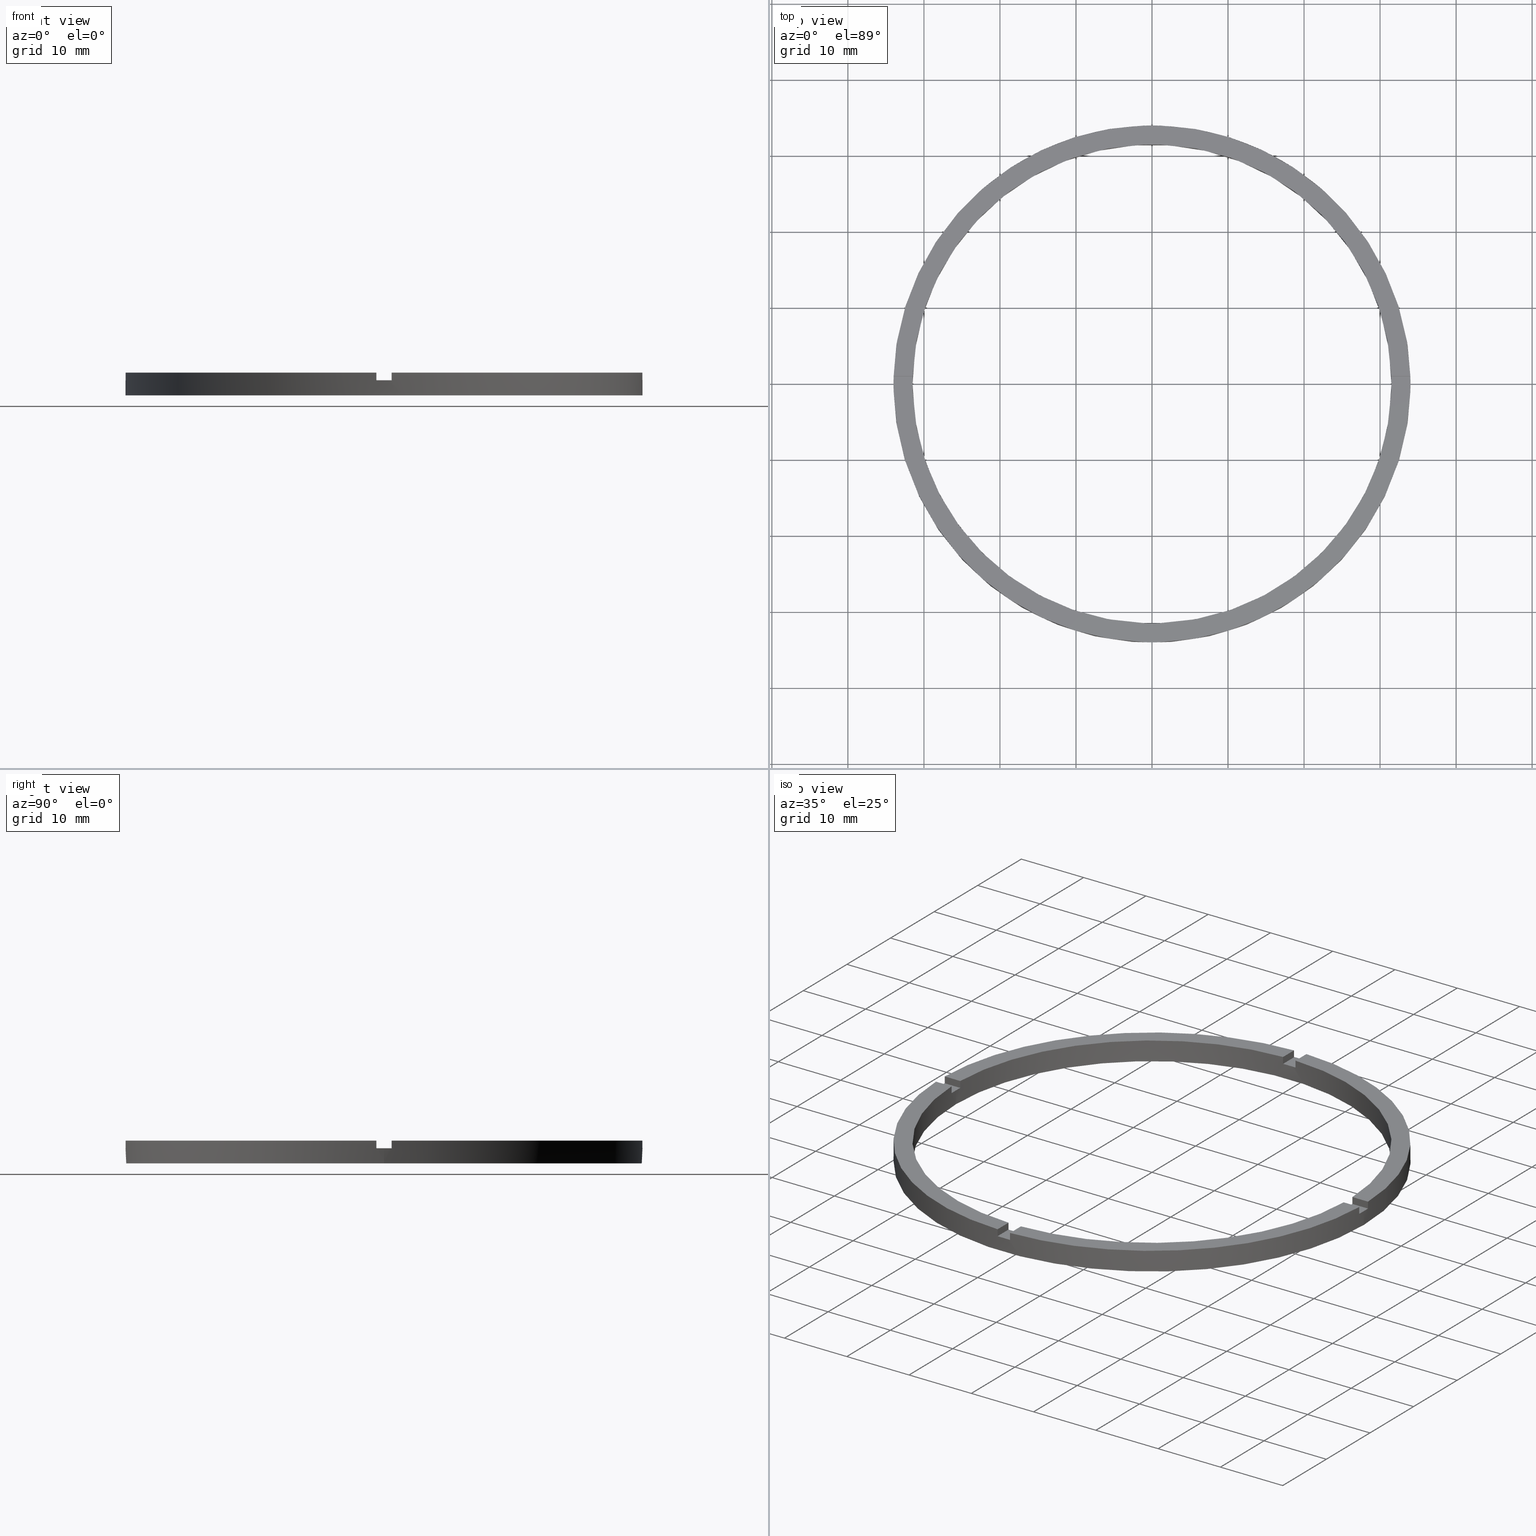
[diagram: canonical four-view strip — front | top / right | iso, engineering-drawing reading convention]
A machine part, canonical four-view strip (front | top / right | iso — engineering-drawing reading convention). The complete STEP part file that produces these views, byte-faithful:
ISO-10303-21;
HEADER;
FILE_DESCRIPTION (( 'STEP AP203' ),
    '1' );
FILE_NAME ('514141.step',
    '2024-12-26T02:41:29',
    ( 'MSI' ),
    ( '' ),
    'SwSTEP 2.0',
    'SolidWorks 2020',
    '' );
FILE_SCHEMA (( 'CONFIG_CONTROL_DESIGN' ));
ENDSEC;

DATA;
#1 = EDGE_CURVE ( 'NONE', #319, #489, #498, .T. ) ;
#2 = PLANE ( 'NONE',  #467 ) ;
#3 = EDGE_CURVE ( 'NONE', #123, #376, #768, .T. ) ;
#4 = DIRECTION ( 'NONE',  ( 0.000000000000000000, 0.000000000000000000, 1.000000000000000000 ) ) ;
#5 = EDGE_CURVE ( 'NONE', #489, #9, #764, .T. ) ;
#6 = CARTESIAN_POINT ( 'NONE',  ( -1.000000000000024869, 24.00000000000000000, 2.000000000000000000 ) ) ;
#7 = AXIS2_PLACEMENT_3D ( 'NONE', #135, #190, #295 ) ;
#8 = CARTESIAN_POINT ( 'NONE',  ( 23.99999999999999289, 0.9999999999998412381, 3.000000000000000000 ) ) ;
#9 = VERTEX_POINT ( 'NONE', #409 ) ;
#10 = ADVANCED_FACE ( 'NONE', ( #250 ), #66, .F. ) ;
#11 = DIRECTION ( 'NONE',  ( 1.951563910473907735E-16, -1.000000000000000000, 0.000000000000000000 ) ) ;
#12 = DIRECTION ( 'NONE',  ( 0.000000000000000000, 0.000000000000000000, 1.000000000000000000 ) ) ;
#13 = DIRECTION ( 'NONE',  ( 1.000000000000000000, 0.000000000000000000, 0.000000000000000000 ) ) ;
#14 = ORIENTED_EDGE ( 'NONE', *, *, #447, .F. ) ;
#15 = EDGE_LOOP ( 'NONE', ( #677, #175, #229, #56, #176, #446, #306, #116, #249, #704, #679, #44 ) ) ;
#16 = CARTESIAN_POINT ( 'NONE',  ( 0.000000000000000000, 0.000000000000000000, 3.000000000000000000 ) ) ;
#17 = AXIS2_PLACEMENT_3D ( 'NONE', #294, #299, #387 ) ;
#18 = ADVANCED_FACE ( 'NONE', ( #241 ), #562, .T. ) ;
#19 = CARTESIAN_POINT ( 'NONE',  ( -31.50000000000000000, 0.000000000000000000, 0.000000000000000000 ) ) ;
#20 = VERTEX_POINT ( 'NONE', #313 ) ;
#21 = DIRECTION ( 'NONE',  ( -0.000000000000000000, -0.000000000000000000, -1.000000000000000000 ) ) ;
#22 = CARTESIAN_POINT ( 'NONE',  ( 31.48412298286232414, -1.000000000000158318, 3.000000000000000000 ) ) ;
#23 = VERTEX_POINT ( 'NONE', #517 ) ;
#24 = AXIS2_PLACEMENT_3D ( 'NONE', #300, #392, #235 ) ;
#25 = DIRECTION ( 'NONE',  ( 1.000000000000000000, 0.000000000000000000, 0.000000000000000000 ) ) ;
#26 = CARTESIAN_POINT ( 'NONE',  ( 0.000000000000000000, 0.000000000000000000, 2.000000000000000000 ) ) ;
#27 = DIRECTION ( 'NONE',  ( -0.000000000000000000, -0.000000000000000000, -1.000000000000000000 ) ) ;
#28 = APPROVAL ( #29, 'δָ��' ) ;
#29 = APPROVAL_STATUS ( 'not_yet_approved' ) ;
#30 = ORIENTED_EDGE ( 'NONE', *, *, #571, .T. ) ;
#31 = EDGE_CURVE ( 'NONE', #319, #673, #491, .T. ) ;
#32 = EDGE_CURVE ( 'NONE', #594, #302, #744, .T. ) ;
#33 = ORIENTED_EDGE ( 'NONE', *, *, #739, .F. ) ;
#34 = EDGE_LOOP ( 'NONE', ( #335, #30 ) ) ;
#35 = ORIENTED_EDGE ( 'NONE', *, *, #758, .F. ) ;
#36 = APPLICATION_CONTEXT ( 'configuration controlled 3d designs of mechanical parts and assemblies' ) ;
#37 = CARTESIAN_POINT ( 'NONE',  ( 0.000000000000000000, 0.000000000000000000, 3.000000000000000000 ) ) ;
#38 = ORIENTED_EDGE ( 'NONE', *, *, #194, .T. ) ;
#39 = PLANE ( 'NONE',  #291 ) ;
#40 = ORIENTED_EDGE ( 'NONE', *, *, #3, .F. ) ;
#41 = EDGE_CURVE ( 'NONE', #133, #50, #761, .T. ) ;
#42 = DATE_TIME_ROLE ( 'creation_date' ) ;
#43 = ORIENTED_EDGE ( 'NONE', *, *, #378, .F. ) ;
#44 = ORIENTED_EDGE ( 'NONE', *, *, #417, .T. ) ;
#45 = DIRECTION ( 'NONE',  ( 0.000000000000000000, 0.000000000000000000, 1.000000000000000000 ) ) ;
#46 = ORIENTED_EDGE ( 'NONE', *, *, #41, .F. ) ;
#47 = ORIENTED_EDGE ( 'NONE', *, *, #159, .F. ) ;
#48 = PLANE ( 'NONE',  #7 ) ;
#49 = ORIENTED_EDGE ( 'NONE', *, *, #112, .T. ) ;
#50 = VERTEX_POINT ( 'NONE', #22 ) ;
#51 = CYLINDRICAL_SURFACE ( 'NONE', #113, 31.50000000000000000 ) ;
#52 = CARTESIAN_POINT ( 'NONE',  ( 34.00000000000000000, 4.163799117101000559E-15, 2.000000000000000000 ) ) ;
#53 = EDGE_LOOP ( 'NONE', ( #573, #411, #242, #448 ) ) ;
#54 = CARTESIAN_POINT ( 'NONE',  ( 0.9999999999998393507, -33.98529093593285921, 2.000000000000000000 ) ) ;
#55 = AXIS2_PLACEMENT_3D ( 'NONE', #16, #207, #747 ) ;
#56 = ORIENTED_EDGE ( 'NONE', *, *, #453, .F. ) ;
#57 = PERSON_AND_ORGANIZATION ( #257, #76 ) ;
#58 = VERTEX_POINT ( 'NONE', #655 ) ;
#59 = EDGE_LOOP ( 'NONE', ( #502, #428, #487, #682 ) ) ;
#60 = PRODUCT_DEFINITION_FORMATION_WITH_SPECIFIED_SOURCE ( '�κ�', '', #546, .NOT_KNOWN. ) ;
#61 = ORIENTED_EDGE ( 'NONE', *, *, #232, .F. ) ;
#62 = ORIENTED_EDGE ( 'NONE', *, *, #633, .T. ) ;
#63 = PERSON_AND_ORGANIZATION ( #257, #76 ) ;
#64 = CARTESIAN_POINT ( 'NONE',  ( -1.000000000000160982, -31.48412298286232414, 3.000000000000000000 ) ) ;
#65 = AXIS2_PLACEMENT_3D ( 'NONE', #281, #114, #347 ) ;
#66 = PLANE ( 'NONE',  #179 ) ;
#67 = COORDINATED_UNIVERSAL_TIME_OFFSET ( 8, 0, .AHEAD. ) ;
#68 = VERTEX_POINT ( 'NONE', #334 ) ;
#69 = CALENDAR_DATE ( 2024, 26, 12 ) ;
#70 = EDGE_CURVE ( 'NONE', #329, #123, #733, .T. ) ;
#71 = APPROVAL_DATE_TIME ( #351, #783 ) ;
#72 = CARTESIAN_POINT ( 'NONE',  ( -31.48412298286233124, -1.000000000000025757, 3.000000000000000000 ) ) ;
#73 = VERTEX_POINT ( 'NONE', #255 ) ;
#74 = DATE_AND_TIME ( #604, #96 ) ;
#75 = DIRECTION ( 'NONE',  ( 0.000000000000000000, 0.000000000000000000, 1.000000000000000000 ) ) ;
#76 = ORGANIZATION ( 'δָ��', 'δָ��', '' ) ;
#77 = ORIENTED_EDGE ( 'NONE', *, *, #582, .T. ) ;
#78 = PERSON_AND_ORGANIZATION ( #257, #76 ) ;
#79 = CARTESIAN_POINT ( 'NONE',  ( 0.000000000000000000, 0.000000000000000000, 2.000000000000000000 ) ) ;
#80 = PERSON_AND_ORGANIZATION ( #257, #76 ) ;
#81 = ADVANCED_FACE ( 'NONE', ( #735 ), #692, .F. ) ;
#82 =( LENGTH_UNIT ( ) NAMED_UNIT ( * ) SI_UNIT ( .MILLI., .METRE. ) );
#83 = CIRCLE ( 'NONE', #65, 31.50000000000000000 ) ;
#84 = COORDINATED_UNIVERSAL_TIME_OFFSET ( 8, 0, .AHEAD. ) ;
#85 = AXIS2_PLACEMENT_3D ( 'NONE', #272, #75, #222 ) ;
#86 = LINE ( 'NONE', #286, #634 ) ;
#87 = LOCAL_TIME ( 10, 41, 29.00000000000000000, #340 ) ;
#88 = VECTOR ( 'NONE', #45, 1000.000000000000000 ) ;
#89 = VECTOR ( 'NONE', #730, 1000.000000000000000 ) ;
#90 = CARTESIAN_POINT ( 'NONE',  ( 0.000000000000000000, 0.000000000000000000, 0.000000000000000000 ) ) ;
#91 = LINE ( 'NONE', #525, #621 ) ;
#92 = APPROVAL_DATE_TIME ( #614, #28 ) ;
#93 = CALENDAR_DATE ( 2024, 26, 12 ) ;
#94 = DIRECTION ( 'NONE',  ( 0.000000000000000000, 0.000000000000000000, 1.000000000000000000 ) ) ;
#95 = FACE_OUTER_BOUND ( 'NONE', #542, .T. ) ;
#96 = LOCAL_TIME ( 10, 41, 29.00000000000000000, #84 ) ;
#97 = VECTOR ( 'NONE', #143, 1000.000000000000000 ) ;
#98 = VECTOR ( 'NONE', #645, 1000.000000000000000 ) ;
#99 = VECTOR ( 'NONE', #686, 1000.000000000000000 ) ;
#100 = EDGE_LOOP ( 'NONE', ( #442, #574, #399, #160 ) ) ;
#101 = LINE ( 'NONE', #349, #396 ) ;
#102 = CIRCLE ( 'NONE', #85, 34.00000000000000000 ) ;
#103 = DIRECTION ( 'NONE',  ( -1.000000000000000000, 0.000000000000000000, 0.000000000000000000 ) ) ;
#104 = LINE ( 'NONE', #356, #381 ) ;
#105 = EDGE_LOOP ( 'NONE', ( #565, #224, #164, #765 ) ) ;
#106 = FACE_OUTER_BOUND ( 'NONE', #298, .T. ) ;
#107 = ORIENTED_EDGE ( 'NONE', *, *, #31, .F. ) ;
#108 = CIRCLE ( 'NONE', #458, 31.50000000000000000 ) ;
#109 = FACE_OUTER_BOUND ( 'NONE', #662, .T. ) ;
#110 = VERTEX_POINT ( 'NONE', #19 ) ;
#111 = DIRECTION ( 'NONE',  ( 0.000000000000000000, 0.000000000000000000, 1.000000000000000000 ) ) ;
#112 = EDGE_CURVE ( 'NONE', #395, #180, #218, .T. ) ;
#113 = AXIS2_PLACEMENT_3D ( 'NONE', #412, #706, #465 ) ;
#114 = DIRECTION ( 'NONE',  ( 0.000000000000000000, 0.000000000000000000, 1.000000000000000000 ) ) ;
#115 = CIRCLE ( 'NONE', #722, 31.50000000000000000 ) ;
#116 = ORIENTED_EDGE ( 'NONE', *, *, #70, .T. ) ;
#117 = VECTOR ( 'NONE', #644, 1000.000000000000000 ) ;
#118 = CIRCLE ( 'NONE', #499, 34.00000000000000000 ) ;
#119 = VERTEX_POINT ( 'NONE', #54 ) ;
#120 = APPROVAL_STATUS ( 'not_yet_approved' ) ;
#121 = EDGE_CURVE ( 'NONE', #413, #174, #245, .T. ) ;
#122 = CYLINDRICAL_SURFACE ( 'NONE', #431, 34.00000000000000000 ) ;
#123 = VERTEX_POINT ( 'NONE', #196 ) ;
#124 = FACE_OUTER_BOUND ( 'NONE', #642, .T. ) ;
#125 = ORIENTED_EDGE ( 'NONE', *, *, #610, .T. ) ;
#126 = CARTESIAN_POINT ( 'NONE',  ( 23.99999999999999289, -1.000000000000158762, 2.000000000000000000 ) ) ;
#127 = FACE_OUTER_BOUND ( 'NONE', #707, .T. ) ;
#128 = VECTOR ( 'NONE', #566, 1000.000000000000000 ) ;
#129 = CARTESIAN_POINT ( 'NONE',  ( 0.000000000000000000, 0.000000000000000000, 2.000000000000000000 ) ) ;
#130 = PERSON_AND_ORGANIZATION_ROLE ( 'creator' ) ;
#131 = ORIENTED_EDGE ( 'NONE', *, *, #705, .T. ) ;
#132 = AXIS2_PLACEMENT_3D ( 'NONE', #445, #111, #592 ) ;
#133 = VERTEX_POINT ( 'NONE', #147 ) ;
#134 = EDGE_CURVE ( 'NONE', #329, #673, #762, .T. ) ;
#135 = CARTESIAN_POINT ( 'NONE',  ( 0.000000000000000000, 0.000000000000000000, 2.000000000000000000 ) ) ;
#136 = CARTESIAN_POINT ( 'NONE',  ( -1.000000000000024869, 31.48412298286233124, 3.000000000000000000 ) ) ;
#137 = CARTESIAN_POINT ( 'NONE',  ( 0.000000000000000000, 0.000000000000000000, 3.000000000000000000 ) ) ;
#138 = AXIS2_PLACEMENT_3D ( 'NONE', #638, #631, #742 ) ;
#139 = ORIENTED_EDGE ( 'NONE', *, *, #285, .F. ) ;
#140 = DIRECTION ( 'NONE',  ( -1.000000000000000000, -1.301042606982605074E-16, 0.000000000000000000 ) ) ;
#141 = DIRECTION ( 'NONE',  ( -1.000000000000000000, -6.505213034913025371E-17, -0.000000000000000000 ) ) ;
#142 = ORIENTED_EDGE ( 'NONE', *, *, #184, .T. ) ;
#143 = DIRECTION ( 'NONE',  ( 0.000000000000000000, 0.000000000000000000, 1.000000000000000000 ) ) ;
#144 = DIRECTION ( 'NONE',  ( -1.000000000000000000, 0.000000000000000000, 0.000000000000000000 ) ) ;
#145 = CC_DESIGN_PERSON_AND_ORGANIZATION_ASSIGNMENT ( #78, #729, ( #725 ) ) ;
#146 = ORIENTED_EDGE ( 'NONE', *, *, #523, .T. ) ;
#147 = CARTESIAN_POINT ( 'NONE',  ( 31.48412298286232414, -1.000000000000158318, 2.000000000000000000 ) ) ;
#148 = DIRECTION ( 'NONE',  ( 6.505213034913025371E-17, -1.000000000000000000, 0.000000000000000000 ) ) ;
#149 = ORIENTED_EDGE ( 'NONE', *, *, #524, .F. ) ;
#150 = ORIENTED_EDGE ( 'NONE', *, *, #258, .F. ) ;
#151 = ORIENTED_EDGE ( 'NONE', *, *, #424, .T. ) ;
#152 = DIRECTION ( 'NONE',  ( -0.000000000000000000, -0.000000000000000000, -1.000000000000000000 ) ) ;
#153 = CARTESIAN_POINT ( 'NONE',  ( 0.9999999999998391287, -31.48412298286233479, 3.000000000000000000 ) ) ;
#154 = EDGE_CURVE ( 'NONE', #594, #422, #230, .T. ) ;
#155 = DIRECTION ( 'NONE',  ( -1.000000000000000000, -1.951563910473907735E-16, 0.000000000000000000 ) ) ;
#156 = LINE ( 'NONE', #615, #166 ) ;
#157 = LINE ( 'NONE', #606, #696 ) ;
#158 = ORIENTED_EDGE ( 'NONE', *, *, #544, .F. ) ;
#159 = EDGE_CURVE ( 'NONE', #23, #415, #748, .T. ) ;
#160 = ORIENTED_EDGE ( 'NONE', *, *, #244, .F. ) ;
#161 = EDGE_CURVE ( 'NONE', #329, #598, #231, .T. ) ;
#162 = CARTESIAN_POINT ( 'NONE',  ( -1.000000000000160982, -31.48412298286232414, 3.000000000000000000 ) ) ;
#163 = DIRECTION ( 'NONE',  ( 1.000000000000000000, 0.000000000000000000, -0.000000000000000000 ) ) ;
#164 = ORIENTED_EDGE ( 'NONE', *, *, #121, .F. ) ;
#165 = CARTESIAN_POINT ( 'NONE',  ( -33.98529093593285921, 0.9999999999999735767, 3.000000000000000000 ) ) ;
#166 = VECTOR ( 'NONE', #440, 1000.000000000000000 ) ;
#167 = ORIENTED_EDGE ( 'NONE', *, *, #1, .T. ) ;
#168 = VECTOR ( 'NONE', #4, 1000.000000000000000 ) ;
#169 = CARTESIAN_POINT ( 'NONE',  ( 0.000000000000000000, 0.000000000000000000, 2.000000000000000000 ) ) ;
#170 = CARTESIAN_POINT ( 'NONE',  ( 0.000000000000000000, 0.000000000000000000, 0.000000000000000000 ) ) ;
#171 = FACE_OUTER_BOUND ( 'NONE', #178, .T. ) ;
#172 = AXIS2_PLACEMENT_3D ( 'NONE', #185, #777, #25 ) ;
#173 = ORIENTED_EDGE ( 'NONE', *, *, #134, .T. ) ;
#174 = VERTEX_POINT ( 'NONE', #307 ) ;
#175 = ORIENTED_EDGE ( 'NONE', *, *, #378, .T. ) ;
#176 = ORIENTED_EDGE ( 'NONE', *, *, #1, .F. ) ;
#177 = ORIENTED_EDGE ( 'NONE', *, *, #315, .F. ) ;
#178 = EDGE_LOOP ( 'NONE', ( #247, #681, #292, #150 ) ) ;
#179 = AXIS2_PLACEMENT_3D ( 'NONE', #556, #148, #639 ) ;
#180 = VERTEX_POINT ( 'NONE', #405 ) ;
#181 = PLANE ( 'NONE',  #536 ) ;
#182 = CARTESIAN_POINT ( 'NONE',  ( 0.9999999999999751310, 31.48412298286233124, 3.000000000000000000 ) ) ;
#183 = DIRECTION ( 'NONE',  ( 1.000000000000000000, 6.505213034913025371E-17, 0.000000000000000000 ) ) ;
#184 = EDGE_CURVE ( 'NONE', #50, #384, #770, .T. ) ;
#185 = CARTESIAN_POINT ( 'NONE',  ( 0.000000000000000000, 0.000000000000000000, 3.000000000000000000 ) ) ;
#186 = CARTESIAN_POINT ( 'NONE',  ( -33.98529093593285211, -1.000000000000026423, 3.000000000000000000 ) ) ;
#187 = CC_DESIGN_PERSON_AND_ORGANIZATION_ASSIGNMENT ( #57, #240, ( #546 ) ) ;
#188 = CARTESIAN_POINT ( 'NONE',  ( 0.000000000000000000, 0.000000000000000000, 2.000000000000000000 ) ) ;
#189 = EDGE_CURVE ( 'NONE', #23, #450, #522, .T. ) ;
#190 = DIRECTION ( 'NONE',  ( 0.000000000000000000, 0.000000000000000000, 1.000000000000000000 ) ) ;
#191 = DIRECTION ( 'NONE',  ( -0.000000000000000000, -0.000000000000000000, -1.000000000000000000 ) ) ;
#192 = DIRECTION ( 'NONE',  ( 1.000000000000000000, 0.000000000000000000, -0.000000000000000000 ) ) ;
#193 = EDGE_CURVE ( 'NONE', #479, #319, #253, .T. ) ;
#194 = EDGE_CURVE ( 'NONE', #449, #123, #521, .T. ) ;
#195 = PLANE ( 'NONE',  #454 ) ;
#196 = CARTESIAN_POINT ( 'NONE',  ( -1.000000000000024869, 33.98529093593285211, 2.000000000000000000 ) ) ;
#197 = AXIS2_PLACEMENT_3D ( 'NONE', #552, #280, #663 ) ;
#198 = DIRECTION ( 'NONE',  ( 1.301042606982605074E-16, -1.000000000000000000, 0.000000000000000000 ) ) ;
#199 = DIRECTION ( 'NONE',  ( 1.000000000000000000, -0.000000000000000000, 0.000000000000000000 ) ) ;
#200 = CARTESIAN_POINT ( 'NONE',  ( -1.000000000000024869, 24.00000000000000000, 3.000000000000000000 ) ) ;
#201 = EDGE_CURVE ( 'NONE', #598, #513, #772, .T. ) ;
#202 = DIRECTION ( 'NONE',  ( 0.000000000000000000, 0.000000000000000000, 1.000000000000000000 ) ) ;
#203 = PLANE ( 'NONE',  #529 ) ;
#204 = DIRECTION ( 'NONE',  ( -0.000000000000000000, 0.000000000000000000, 1.000000000000000000 ) ) ;
#205 = CARTESIAN_POINT ( 'NONE',  ( 0.000000000000000000, 0.000000000000000000, 2.000000000000000000 ) ) ;
#206 = AXIS2_PLACEMENT_3D ( 'NONE', #320, #414, #468 ) ;
#207 = DIRECTION ( 'NONE',  ( 0.000000000000000000, 0.000000000000000000, 1.000000000000000000 ) ) ;
#208 = CARTESIAN_POINT ( 'NONE',  ( -1.000000000000024869, 33.98529093593285211, 3.000000000000000000 ) ) ;
#209 = CC_DESIGN_APPROVAL ( #553, ( #725 ) ) ;
#210 = DIRECTION ( 'NONE',  ( 1.000000000000000000, 0.000000000000000000, 0.000000000000000000 ) ) ;
#211 = CARTESIAN_POINT ( 'NONE',  ( 0.000000000000000000, 0.000000000000000000, 2.000000000000000000 ) ) ;
#212 = PLANE ( 'NONE',  #271 ) ;
#213 = EDGE_CURVE ( 'NONE', #9, #595, #518, .T. ) ;
#214 = VERTEX_POINT ( 'NONE', #757 ) ;
#215 =( GEOMETRIC_REPRESENTATION_CONTEXT ( 3 ) GLOBAL_UNCERTAINTY_ASSIGNED_CONTEXT ( ( #256 ) ) GLOBAL_UNIT_ASSIGNED_CONTEXT ( ( #82, #436, #532 ) ) REPRESENTATION_CONTEXT ( 'NONE', 'WORKASPACE' ) );
#216 = DIRECTION ( 'NONE',  ( 1.000000000000000000, 0.000000000000000000, 0.000000000000000000 ) ) ;
#217 = ORIENTED_EDGE ( 'NONE', *, *, #293, .F. ) ;
#218 = LINE ( 'NONE', #697, #493 ) ;
#219 = DIRECTION ( 'NONE',  ( 0.000000000000000000, 0.000000000000000000, 1.000000000000000000 ) ) ;
#220 = ORIENTED_EDGE ( 'NONE', *, *, #453, .T. ) ;
#221 = CC_DESIGN_DATE_AND_TIME_ASSIGNMENT ( #357, #42, ( #661 ) ) ;
#222 = DIRECTION ( 'NONE',  ( 1.000000000000000000, 0.000000000000000000, 0.000000000000000000 ) ) ;
#223 = APPLICATION_CONTEXT ( 'configuration controlled 3d designs of mechanical parts and assemblies' ) ;
#224 = ORIENTED_EDGE ( 'NONE', *, *, #758, .T. ) ;
#225 = ORIENTED_EDGE ( 'NONE', *, *, #582, .F. ) ;
#226 = ORIENTED_EDGE ( 'NONE', *, *, #750, .F. ) ;
#227 = VECTOR ( 'NONE', #27, 1000.000000000000000 ) ;
#228 = PERSON_AND_ORGANIZATION_ROLE ( 'creator' ) ;
#229 = ORIENTED_EDGE ( 'NONE', *, *, #315, .T. ) ;
#230 = LINE ( 'NONE', #8, #497 ) ;
#231 = LINE ( 'NONE', #200, #511 ) ;
#232 = EDGE_CURVE ( 'NONE', #598, #376, #769, .T. ) ;
#233 = ORIENTED_EDGE ( 'NONE', *, *, #41, .T. ) ;
#234 = ORIENTED_EDGE ( 'NONE', *, *, #554, .F. ) ;
#235 = DIRECTION ( 'NONE',  ( 1.000000000000000000, 0.000000000000000000, 0.000000000000000000 ) ) ;
#236 = DIRECTION ( 'NONE',  ( 0.000000000000000000, 0.000000000000000000, 1.000000000000000000 ) ) ;
#237 = ORIENTED_EDGE ( 'NONE', *, *, #70, .F. ) ;
#238 = ORIENTED_EDGE ( 'NONE', *, *, #544, .T. ) ;
#239 = ADVANCED_FACE ( 'NONE', ( #124 ), #401, .T. ) ;
#240 = PERSON_AND_ORGANIZATION_ROLE ( 'design_owner' ) ;
#241 = FACE_OUTER_BOUND ( 'NONE', #559, .T. ) ;
#242 = ORIENTED_EDGE ( 'NONE', *, *, #112, .F. ) ;
#243 = CARTESIAN_POINT ( 'NONE',  ( -24.00000000000018829, -1.000000000000024425, 2.000000000000000000 ) ) ;
#244 = EDGE_CURVE ( 'NONE', #339, #9, #353, .T. ) ;
#245 = LINE ( 'NONE', #618, #746 ) ;
#246 = CARTESIAN_POINT ( 'NONE',  ( -24.00000000000018829, 0.9999999999999754641, 2.000000000000000000 ) ) ;
#247 = ORIENTED_EDGE ( 'NONE', *, *, #189, .F. ) ;
#248 = DIRECTION ( 'NONE',  ( 0.000000000000000000, 0.000000000000000000, 1.000000000000000000 ) ) ;
#249 = ORIENTED_EDGE ( 'NONE', *, *, #194, .F. ) ;
#250 = FACE_OUTER_BOUND ( 'NONE', #289, .T. ) ;
#251 = VECTOR ( 'NONE', #191, 1000.000000000000000 ) ;
#252 = VECTOR ( 'NONE', #463, 1000.000000000000000 ) ;
#253 = LINE ( 'NONE', #708, #254 ) ;
#254 = VECTOR ( 'NONE', #155, 1000.000000000000000 ) ;
#255 = CARTESIAN_POINT ( 'NONE',  ( 31.50000000000000000, 3.857637417314162689E-15, 0.000000000000000000 ) ) ;
#256 = UNCERTAINTY_MEASURE_WITH_UNIT (LENGTH_MEASURE( 1.000000000000000082E-05 ), #82, 'distance_accuracy_value', 'NONE');
#257 = PERSON ( 'δָ��', 'δָ��', 'δָ��', ('δָ��'), ('δָ��'), ('δָ��') ) ;
#258 = EDGE_CURVE ( 'NONE', #450, #494, #632, .T. ) ;
#259 = AXIS2_PLACEMENT_3D ( 'NONE', #691, #202, #288 ) ;
#260 = PLANE ( 'NONE',  #509 ) ;
#261 = CARTESIAN_POINT ( 'NONE',  ( 0.000000000000000000, 0.000000000000000000, 3.000000000000000000 ) ) ;
#262 = CARTESIAN_POINT ( 'NONE',  ( 0.000000000000000000, 0.000000000000000000, 3.000000000000000000 ) ) ;
#263 = DIRECTION ( 'NONE',  ( -0.000000000000000000, -1.000000000000000000, -0.000000000000000000 ) ) ;
#264 = ADVANCED_FACE ( 'NONE', ( #374 ), #2, .T. ) ;
#265 = AXIS2_PLACEMENT_3D ( 'NONE', #547, #630, #702 ) ;
#266 = CARTESIAN_POINT ( 'NONE',  ( 0.000000000000000000, 0.000000000000000000, 3.000000000000000000 ) ) ;
#267 = DIRECTION ( 'NONE',  ( 1.000000000000000000, 0.000000000000000000, 0.000000000000000000 ) ) ;
#268 = DIRECTION ( 'NONE',  ( -0.000000000000000000, -1.000000000000000000, -0.000000000000000000 ) ) ;
#269 = PLANE ( 'NONE',  #55 ) ;
#270 = CARTESIAN_POINT ( 'NONE',  ( 0.9999999999998380185, -24.00000000000018119, 2.000000000000000000 ) ) ;
#271 = AXIS2_PLACEMENT_3D ( 'NONE', #26, #480, #726 ) ;
#272 = CARTESIAN_POINT ( 'NONE',  ( 0.000000000000000000, 0.000000000000000000, 3.000000000000000000 ) ) ;
#273 = DIRECTION ( 'NONE',  ( 0.000000000000000000, 0.000000000000000000, 1.000000000000000000 ) ) ;
#274 = CARTESIAN_POINT ( 'NONE',  ( -31.48412298286233124, 0.9999999999999742428, 3.000000000000000000 ) ) ;
#275 = PLANE ( 'NONE',  #577 ) ;
#276 = ADVANCED_FACE ( 'NONE', ( #363 ), #212, .T. ) ;
#277 = CARTESIAN_POINT ( 'NONE',  ( 0.000000000000000000, 0.000000000000000000, 0.000000000000000000 ) ) ;
#278 = CARTESIAN_POINT ( 'NONE',  ( 31.48412298286232414, -1.000000000000158318, 3.000000000000000000 ) ) ;
#279 = ORIENTED_EDGE ( 'NONE', *, *, #605, .T. ) ;
#280 = DIRECTION ( 'NONE',  ( 0.000000000000000000, 0.000000000000000000, 1.000000000000000000 ) ) ;
#281 = CARTESIAN_POINT ( 'NONE',  ( 0.000000000000000000, 0.000000000000000000, 3.000000000000000000 ) ) ;
#282 = ORIENTED_EDGE ( 'NONE', *, *, #665, .T. ) ;
#283 = CARTESIAN_POINT ( 'NONE',  ( -31.48412298286233124, -1.000000000000025757, 2.000000000000000000 ) ) ;
#284 = EDGE_CURVE ( 'NONE', #119, #415, #398, .T. ) ;
#285 = EDGE_CURVE ( 'NONE', #110, #73, #613, .T. ) ;
#286 = CARTESIAN_POINT ( 'NONE',  ( 0.9999999999999751310, 24.00000000000000000, 3.000000000000000000 ) ) ;
#287 = DIRECTION ( 'NONE',  ( 1.000000000000000000, 0.000000000000000000, 0.000000000000000000 ) ) ;
#288 = DIRECTION ( 'NONE',  ( 1.000000000000000000, 0.000000000000000000, 0.000000000000000000 ) ) ;
#289 = EDGE_LOOP ( 'NONE', ( #587, #233, #142, #149 ) ) ;
#290 = DIRECTION ( 'NONE',  ( -1.951563910473907735E-16, 1.000000000000000000, 0.000000000000000000 ) ) ;
#291 = AXIS2_PLACEMENT_3D ( 'NONE', #246, #290, #369 ) ;
#292 = ORIENTED_EDGE ( 'NONE', *, *, #670, .T. ) ;
#293 = EDGE_CURVE ( 'NONE', #180, #415, #658, .T. ) ;
#294 = CARTESIAN_POINT ( 'NONE',  ( 0.000000000000000000, 0.000000000000000000, 3.000000000000000000 ) ) ;
#295 = DIRECTION ( 'NONE',  ( 1.000000000000000000, 0.000000000000000000, -0.000000000000000000 ) ) ;
#296 = AXIS2_PLACEMENT_3D ( 'NONE', #743, #464, #13 ) ;
#297 = CARTESIAN_POINT ( 'NONE',  ( -1.000000000000162093, -24.00000000000018119, 2.000000000000000000 ) ) ;
#298 = EDGE_LOOP ( 'NONE', ( #581, #177 ) ) ;
#299 = DIRECTION ( 'NONE',  ( -0.000000000000000000, -0.000000000000000000, -1.000000000000000000 ) ) ;
#300 = CARTESIAN_POINT ( 'NONE',  ( 0.000000000000000000, 0.000000000000000000, 2.000000000000000000 ) ) ;
#301 = DIRECTION ( 'NONE',  ( 1.000000000000000000, 0.000000000000000000, 0.000000000000000000 ) ) ;
#302 = VERTEX_POINT ( 'NONE', #488 ) ;
#303 = AXIS2_PLACEMENT_3D ( 'NONE', #37, #535, #676 ) ;
#304 = DIRECTION ( 'NONE',  ( 0.000000000000000000, 0.000000000000000000, 1.000000000000000000 ) ) ;
#305 = CARTESIAN_POINT ( 'NONE',  ( -31.48412298286233124, 0.9999999999999742428, 2.000000000000000000 ) ) ;
#306 = ORIENTED_EDGE ( 'NONE', *, *, #134, .F. ) ;
#307 = CARTESIAN_POINT ( 'NONE',  ( 31.48412298286233479, 0.9999999999998416822, 2.000000000000000000 ) ) ;
#308 = CC_DESIGN_APPROVAL ( #28, ( #60 ) ) ;
#309 = EDGE_LOOP ( 'NONE', ( #603, #570, #35, #131, #14, #408, #61, #569, #659, #560, #77, #323 ) ) ;
#310 = DIRECTION ( 'NONE',  ( 0.000000000000000000, 0.000000000000000000, 1.000000000000000000 ) ) ;
#311 = ORIENTED_EDGE ( 'NONE', *, *, #201, .F. ) ;
#312 = DIRECTION ( 'NONE',  ( 1.000000000000000000, 6.505213034913025371E-17, 0.000000000000000000 ) ) ;
#313 = CARTESIAN_POINT ( 'NONE',  ( 0.9999999999999751310, 31.48412298286233124, 2.000000000000000000 ) ) ;
#314 = ORIENTED_EDGE ( 'NONE', *, *, #490, .F. ) ;
#315 = EDGE_CURVE ( 'NONE', #214, #68, #118, .T. ) ;
#316 = ORIENTED_EDGE ( 'NONE', *, *, #609, .T. ) ;
#317 = DIRECTION ( 'NONE',  ( 0.000000000000000000, 0.000000000000000000, 1.000000000000000000 ) ) ;
#318 = CARTESIAN_POINT ( 'NONE',  ( 33.98529093593285211, -1.000000000000158096, 2.000000000000000000 ) ) ;
#319 = VERTEX_POINT ( 'NONE', #597 ) ;
#320 = CARTESIAN_POINT ( 'NONE',  ( 0.000000000000000000, 0.000000000000000000, 3.000000000000000000 ) ) ;
#321 = EDGE_CURVE ( 'NONE', #395, #384, #102, .T. ) ;
#322 = APPROVAL_PERSON_ORGANIZATION ( #63, #783, #482 ) ;
#323 = ORIENTED_EDGE ( 'NONE', *, *, #571, .F. ) ;
#324 = ORIENTED_EDGE ( 'NONE', *, *, #531, .F. ) ;
#325 = ORIENTED_EDGE ( 'NONE', *, *, #508, .F. ) ;
#326 = DIRECTION ( 'NONE',  ( 1.000000000000000000, 0.000000000000000000, 0.000000000000000000 ) ) ;
#327 = ORIENTED_EDGE ( 'NONE', *, *, #159, .T. ) ;
#328 = ORIENTED_EDGE ( 'NONE', *, *, #724, .F. ) ;
#329 = VERTEX_POINT ( 'NONE', #208 ) ;
#330 = AXIS2_PLACEMENT_3D ( 'NONE', #466, #358, #326 ) ;
#331 = DIRECTION ( 'NONE',  ( 1.000000000000000000, 0.000000000000000000, 0.000000000000000000 ) ) ;
#332 = APPLICATION_PROTOCOL_DEFINITION ( 'international standard', 'config_control_design', 1994, #36 ) ;
#333 = EDGE_CURVE ( 'NONE', #450, #119, #619, .T. ) ;
#334 = CARTESIAN_POINT ( 'NONE',  ( -34.00000000000000000, 0.000000000000000000, 0.000000000000000000 ) ) ;
#335 = ORIENTED_EDGE ( 'NONE', *, *, #285, .T. ) ;
#336 = ORIENTED_EDGE ( 'NONE', *, *, #5, .F. ) ;
#337 = DIRECTION ( 'NONE',  ( 0.000000000000000000, 0.000000000000000000, 1.000000000000000000 ) ) ;
#338 = PERSON_AND_ORGANIZATION ( #257, #76 ) ;
#339 = VERTEX_POINT ( 'NONE', #186 ) ;
#340 = COORDINATED_UNIVERSAL_TIME_OFFSET ( 8, 0, .AHEAD. ) ;
#341 = DIRECTION ( 'NONE',  ( 1.000000000000000000, 0.000000000000000000, 0.000000000000000000 ) ) ;
#342 = LOCAL_TIME ( 10, 41, 29.00000000000000000, #67 ) ;
#343 = APPROVAL_PERSON_ORGANIZATION ( #338, #28, #472 ) ;
#344 = AXIS2_PLACEMENT_3D ( 'NONE', #430, #763, #216 ) ;
#345 = VERTEX_POINT ( 'NONE', #318 ) ;
#346 = SHAPE_DEFINITION_REPRESENTATION ( #469, #451 ) ;
#347 = DIRECTION ( 'NONE',  ( 1.000000000000000000, 0.000000000000000000, 0.000000000000000000 ) ) ;
#348 = PLANE ( 'NONE',  #484 ) ;
#349 = CARTESIAN_POINT ( 'NONE',  ( 34.00000000000000000, 4.163799117101000559E-15, 3.000000000000000000 ) ) ;
#350 = CALENDAR_DATE ( 2024, 26, 12 ) ;
#351 = DATE_AND_TIME ( #586, #342 ) ;
#352 = CARTESIAN_POINT ( 'NONE',  ( 0.000000000000000000, 0.000000000000000000, 0.000000000000000000 ) ) ;
#353 = LINE ( 'NONE', #690, #89 ) ;
#354 = LOCAL_TIME ( 10, 41, 29.00000000000000000, #364 ) ;
#355 = FACE_OUTER_BOUND ( 'NONE', #760, .T. ) ;
#356 = CARTESIAN_POINT ( 'NONE',  ( 33.98529093593285211, -1.000000000000158096, 3.000000000000000000 ) ) ;
#357 = DATE_AND_TIME ( #69, #87 ) ;
#358 = DIRECTION ( 'NONE',  ( 0.000000000000000000, 0.000000000000000000, 1.000000000000000000 ) ) ;
#359 = EDGE_CURVE ( 'NONE', #479, #563, #648, .T. ) ;
#360 = AXIS2_PLACEMENT_3D ( 'NONE', #277, #779, #341 ) ;
#361 = LINE ( 'NONE', #182, #622 ) ;
#362 = SECURITY_CLASSIFICATION_LEVEL ( 'unclassified' ) ;
#363 = FACE_OUTER_BOUND ( 'NONE', #711, .T. ) ;
#364 = COORDINATED_UNIVERSAL_TIME_OFFSET ( 8, 0, .AHEAD. ) ;
#365 = LINE ( 'NONE', #72, #611 ) ;
#366 = CARTESIAN_POINT ( 'NONE',  ( 0.9999999999999751310, 24.00000000000000000, 2.000000000000000000 ) ) ;
#367 = CIRCLE ( 'NONE', #265, 34.00000000000000000 ) ;
#368 = CYLINDRICAL_SURFACE ( 'NONE', #418, 31.50000000000000000 ) ;
#369 = DIRECTION ( 'NONE',  ( -1.000000000000000000, -1.951563910473907735E-16, 0.000000000000000000 ) ) ;
#370 = APPROVAL_DATE_TIME ( #74, #553 ) ;
#371 = CC_DESIGN_DATE_AND_TIME_ASSIGNMENT ( #602, #666, ( #725 ) ) ;
#372 = ADVANCED_FACE ( 'NONE', ( #652 ), #275, .T. ) ;
#373 = LINE ( 'NONE', #564, #117 ) ;
#374 = FACE_OUTER_BOUND ( 'NONE', #53, .T. ) ;
#375 = LINE ( 'NONE', #64, #97 ) ;
#376 = VERTEX_POINT ( 'NONE', #419 ) ;
#377 = LINE ( 'NONE', #432, #383 ) ;
#378 = EDGE_CURVE ( 'NONE', #698, #214, #101, .T. ) ;
#379 = DIRECTION ( 'NONE',  ( 0.000000000000000000, 0.000000000000000000, 1.000000000000000000 ) ) ;
#380 = FACE_OUTER_BOUND ( 'NONE', #585, .T. ) ;
#381 = VECTOR ( 'NONE', #337, 1000.000000000000000 ) ;
#382 = ORIENTED_EDGE ( 'NONE', *, *, #359, .F. ) ;
#383 = VECTOR ( 'NONE', #616, 1000.000000000000000 ) ;
#384 = VERTEX_POINT ( 'NONE', #475 ) ;
#385 = CARTESIAN_POINT ( 'NONE',  ( 31.50000000000000000, 3.857637417314162689E-15, 3.000000000000000000 ) ) ;
#386 = CIRCLE ( 'NONE', #132, 31.50000000000000000 ) ;
#387 = DIRECTION ( 'NONE',  ( -1.000000000000000000, 0.000000000000000000, 0.000000000000000000 ) ) ;
#388 = FACE_OUTER_BOUND ( 'NONE', #59, .T. ) ;
#389 = ORIENTED_EDGE ( 'NONE', *, *, #424, .F. ) ;
#390 = LINE ( 'NONE', #558, #393 ) ;
#391 = CIRCLE ( 'NONE', #751, 31.50000000000000000 ) ;
#392 = DIRECTION ( 'NONE',  ( 0.000000000000000000, -0.000000000000000000, 1.000000000000000000 ) ) ;
#393 = VECTOR ( 'NONE', #506, 1000.000000000000000 ) ;
#394 = VECTOR ( 'NONE', #514, 1000.000000000000000 ) ;
#395 = VERTEX_POINT ( 'NONE', #672 ) ;
#396 = VECTOR ( 'NONE', #435, 1000.000000000000000 ) ;
#397 = ORIENTED_EDGE ( 'NONE', *, *, #193, .F. ) ;
#398 = LINE ( 'NONE', #270, #98 ) ;
#399 = ORIENTED_EDGE ( 'NONE', *, *, #213, .F. ) ;
#400 = CARTESIAN_POINT ( 'NONE',  ( 0.000000000000000000, 0.000000000000000000, 3.000000000000000000 ) ) ;
#401 = CYLINDRICAL_SURFACE ( 'NONE', #17, 34.00000000000000000 ) ;
#402 = ORIENTED_EDGE ( 'NONE', *, *, #554, .T. ) ;
#403 = CARTESIAN_POINT ( 'NONE',  ( 0.9999999999999751310, 24.00000000000000000, 2.000000000000000000 ) ) ;
#404 = ADVANCED_FACE ( 'NONE', ( #608 ), #441, .T. ) ;
#405 = CARTESIAN_POINT ( 'NONE',  ( 0.9999999999998391287, -31.48412298286233479, 3.000000000000000000 ) ) ;
#406 = DIRECTION ( 'NONE',  ( -0.000000000000000000, 0.000000000000000000, 1.000000000000000000 ) ) ;
#407 = CARTESIAN_POINT ( 'NONE',  ( -1.000000000000162093, -24.00000000000018119, 2.000000000000000000 ) ) ;
#408 = ORIENTED_EDGE ( 'NONE', *, *, #669, .T. ) ;
#409 = CARTESIAN_POINT ( 'NONE',  ( -33.98529093593285211, -1.000000000000026423, 2.000000000000000000 ) ) ;
#410 = ORIENTED_EDGE ( 'NONE', *, *, #258, .T. ) ;
#411 = ORIENTED_EDGE ( 'NONE', *, *, #523, .F. ) ;
#412 = CARTESIAN_POINT ( 'NONE',  ( 0.000000000000000000, 0.000000000000000000, 3.000000000000000000 ) ) ;
#413 = VERTEX_POINT ( 'NONE', #718 ) ;
#414 = DIRECTION ( 'NONE',  ( 0.000000000000000000, 0.000000000000000000, 1.000000000000000000 ) ) ;
#415 = VERTEX_POINT ( 'NONE', #776 ) ;
#416 = ADVANCED_FACE ( 'NONE', ( #656 ), #122, .T. ) ;
#417 = EDGE_CURVE ( 'NONE', #594, #413, #377, .T. ) ;
#418 = AXIS2_PLACEMENT_3D ( 'NONE', #266, #720, #462 ) ;
#419 = CARTESIAN_POINT ( 'NONE',  ( -1.000000000000024869, 31.48412298286233124, 2.000000000000000000 ) ) ;
#420 = ORIENTED_EDGE ( 'NONE', *, *, #473, .T. ) ;
#421 = VECTOR ( 'NONE', #183, 1000.000000000000000 ) ;
#422 = VERTEX_POINT ( 'NONE', #767 ) ;
#423 = CARTESIAN_POINT ( 'NONE',  ( -1.000000000000024869, 33.98529093593285211, 3.000000000000000000 ) ) ;
#424 = EDGE_CURVE ( 'NONE', #504, #759, #83, .T. ) ;
#425 = CC_DESIGN_APPROVAL ( #783, ( #661 ) ) ;
#426 = ORIENTED_EDGE ( 'NONE', *, *, #284, .T. ) ;
#427 = LINE ( 'NONE', #126, #421 ) ;
#428 = ORIENTED_EDGE ( 'NONE', *, *, #447, .T. ) ;
#429 = ORIENTED_EDGE ( 'NONE', *, *, #605, .F. ) ;
#430 = CARTESIAN_POINT ( 'NONE',  ( 0.000000000000000000, 0.000000000000000000, 3.000000000000000000 ) ) ;
#431 = AXIS2_PLACEMENT_3D ( 'NONE', #533, #771, #103 ) ;
#432 = CARTESIAN_POINT ( 'NONE',  ( 33.98529093593285921, 0.9999999999998419042, 3.000000000000000000 ) ) ;
#433 = DIRECTION ( 'NONE',  ( 0.000000000000000000, 0.000000000000000000, 1.000000000000000000 ) ) ;
#434 = LINE ( 'NONE', #366, #443 ) ;
#435 = DIRECTION ( 'NONE',  ( -0.000000000000000000, -0.000000000000000000, -1.000000000000000000 ) ) ;
#436 =( NAMED_UNIT ( * ) PLANE_ANGLE_UNIT ( ) SI_UNIT ( $, .RADIAN. ) );
#437 = LINE ( 'NONE', #734, #168 ) ;
#438 = FACE_OUTER_BOUND ( 'NONE', #100, .T. ) ;
#439 = AXIS2_PLACEMENT_3D ( 'NONE', #261, #736, #301 ) ;
#440 = DIRECTION ( 'NONE',  ( -0.000000000000000000, -0.000000000000000000, -1.000000000000000000 ) ) ;
#441 = PLANE ( 'NONE',  #197 ) ;
#442 = ORIENTED_EDGE ( 'NONE', *, *, #724, .T. ) ;
#443 = VECTOR ( 'NONE', #627, 1000.000000000000000 ) ;
#444 = EDGE_LOOP ( 'NONE', ( #167, #572, #503, #33, #382, #485 ) ) ;
#445 = CARTESIAN_POINT ( 'NONE',  ( 0.000000000000000000, 0.000000000000000000, 2.000000000000000000 ) ) ;
#446 = ORIENTED_EDGE ( 'NONE', *, *, #31, .T. ) ;
#447 = EDGE_CURVE ( 'NONE', #20, #58, #361, .T. ) ;
#448 = ORIENTED_EDGE ( 'NONE', *, *, #321, .T. ) ;
#449 = VERTEX_POINT ( 'NONE', #478 ) ;
#450 = VERTEX_POINT ( 'NONE', #541 ) ;
#451 = ADVANCED_BREP_SHAPE_REPRESENTATION ( '514141', ( #492, #360 ), #215 ) ;
#452 = EDGE_LOOP ( 'NONE', ( #397, #756, #279, #107 ) ) ;
#453 = EDGE_CURVE ( 'NONE', #489, #68, #653, .T. ) ;
#454 = AXIS2_PLACEMENT_3D ( 'NONE', #400, #310, #723 ) ;
#455 = AXIS2_PLACEMENT_3D ( 'NONE', #188, #379, #495 ) ;
#456 = DIRECTION ( 'NONE',  ( 1.000000000000000000, 0.000000000000000000, 0.000000000000000000 ) ) ;
#457 = CARTESIAN_POINT ( 'NONE',  ( 31.50000000000000000, 3.857637417314162689E-15, 2.000000000000000000 ) ) ;
#458 = AXIS2_PLACEMENT_3D ( 'NONE', #169, #219, #331 ) ;
#459 = CARTESIAN_POINT ( 'NONE',  ( 23.99999999999999289, -1.000000000000158762, 3.000000000000000000 ) ) ;
#460 = DIRECTION ( 'NONE',  ( 1.000000000000000000, 0.000000000000000000, 0.000000000000000000 ) ) ;
#461 = ADVANCED_FACE ( 'NONE', ( #127 ), #48, .T. ) ;
#462 = DIRECTION ( 'NONE',  ( -1.000000000000000000, 0.000000000000000000, 0.000000000000000000 ) ) ;
#463 = DIRECTION ( 'NONE',  ( 1.301042606982605074E-16, -1.000000000000000000, 0.000000000000000000 ) ) ;
#464 = DIRECTION ( 'NONE',  ( 0.000000000000000000, 0.000000000000000000, 1.000000000000000000 ) ) ;
#465 = DIRECTION ( 'NONE',  ( -1.000000000000000000, 0.000000000000000000, 0.000000000000000000 ) ) ;
#466 = CARTESIAN_POINT ( 'NONE',  ( 0.000000000000000000, 0.000000000000000000, 2.000000000000000000 ) ) ;
#467 = AXIS2_PLACEMENT_3D ( 'NONE', #137, #543, #192 ) ;
#468 = DIRECTION ( 'NONE',  ( 1.000000000000000000, 0.000000000000000000, 0.000000000000000000 ) ) ;
#469 = PRODUCT_DEFINITION_SHAPE ( 'NONE', 'NONE',  #661 ) ;
#470 = PRODUCT_RELATED_PRODUCT_CATEGORY ( 'detail', '', ( #546 ) ) ;
#471 = CC_DESIGN_PERSON_AND_ORGANIZATION_ASSIGNMENT ( #600, #130, ( #60 ) ) ;
#472 = APPROVAL_ROLE ( '' ) ;
#473 = EDGE_CURVE ( 'NONE', #548, #73, #629, .T. ) ;
#474 = CARTESIAN_POINT ( 'NONE',  ( -34.00000000000000000, 0.000000000000000000, 2.000000000000000000 ) ) ;
#475 = CARTESIAN_POINT ( 'NONE',  ( 33.98529093593285211, -1.000000000000158096, 3.000000000000000000 ) ) ;
#476 = EDGE_CURVE ( 'NONE', #68, #214, #367, .T. ) ;
#477 = ADVANCED_FACE ( 'NONE', ( #388 ), #203, .F. ) ;
#478 = CARTESIAN_POINT ( 'NONE',  ( 0.9999999999999751310, 33.98529093593285921, 2.000000000000000000 ) ) ;
#479 = VERTEX_POINT ( 'NONE', #305 ) ;
#480 = DIRECTION ( 'NONE',  ( 0.000000000000000000, -0.000000000000000000, 1.000000000000000000 ) ) ;
#481 = ORIENTED_EDGE ( 'NONE', *, *, #321, .F. ) ;
#482 = APPROVAL_ROLE ( '' ) ;
#483 = ORIENTED_EDGE ( 'NONE', *, *, #284, .F. ) ;
#484 = AXIS2_PLACEMENT_3D ( 'NONE', #534, #671, #721 ) ;
#485 = ORIENTED_EDGE ( 'NONE', *, *, #193, .T. ) ;
#486 = ADVANCED_FACE ( 'NONE', ( #380 ), #695, .F. ) ;
#487 = ORIENTED_EDGE ( 'NONE', *, *, #508, .T. ) ;
#488 = CARTESIAN_POINT ( 'NONE',  ( 0.9999999999999751310, 33.98529093593285921, 3.000000000000000000 ) ) ;
#489 = VERTEX_POINT ( 'NONE', #474 ) ;
#490 = EDGE_CURVE ( 'NONE', #345, #698, #625, .T. ) ;
#491 = LINE ( 'NONE', #165, #507 ) ;
#492 = MANIFOLD_SOLID_BREP ( '�г�-����1', #738 ) ;
#493 = VECTOR ( 'NONE', #527, 1000.000000000000000 ) ;
#494 = VERTEX_POINT ( 'NONE', #773 ) ;
#495 = DIRECTION ( 'NONE',  ( 1.000000000000000000, 0.000000000000000000, 0.000000000000000000 ) ) ;
#496 = CARTESIAN_POINT ( 'NONE',  ( -1.000000000000160760, -33.98529093593285211, 3.000000000000000000 ) ) ;
#497 = VECTOR ( 'NONE', #141, 1000.000000000000000 ) ;
#498 = CIRCLE ( 'NONE', #455, 34.00000000000000000 ) ;
#499 = AXIS2_PLACEMENT_3D ( 'NONE', #170, #755, #538 ) ;
#500 = CARTESIAN_POINT ( 'NONE',  ( -1.000000000000024869, 31.48412298286233124, 3.000000000000000000 ) ) ;
#501 = DIRECTION ( 'NONE',  ( -0.000000000000000000, -0.000000000000000000, -1.000000000000000000 ) ) ;
#502 = ORIENTED_EDGE ( 'NONE', *, *, #665, .F. ) ;
#503 = ORIENTED_EDGE ( 'NONE', *, *, #213, .T. ) ;
#504 = VERTEX_POINT ( 'NONE', #537 ) ;
#505 = ORIENTED_EDGE ( 'NONE', *, *, #476, .T. ) ;
#506 = DIRECTION ( 'NONE',  ( -0.000000000000000000, -0.000000000000000000, -1.000000000000000000 ) ) ;
#507 = VECTOR ( 'NONE', #94, 1000.000000000000000 ) ;
#508 = EDGE_CURVE ( 'NONE', #58, #302, #86, .T. ) ;
#509 = AXIS2_PLACEMENT_3D ( 'NONE', #407, #140, #198 ) ;
#510 = VECTOR ( 'NONE', #273, 1000.000000000000000 ) ;
#511 = VECTOR ( 'NONE', #263, 1000.000000000000000 ) ;
#512 = ADVANCED_FACE ( 'NONE', ( #637 ), #348, .F. ) ;
#513 = VERTEX_POINT ( 'NONE', #274 ) ;
#514 = DIRECTION ( 'NONE',  ( -1.000000000000000000, -1.951563910473907735E-16, 0.000000000000000000 ) ) ;
#515 = DIRECTION ( 'NONE',  ( 0.000000000000000000, 0.000000000000000000, -1.000000000000000000 ) ) ;
#516 = ORIENTED_EDGE ( 'NONE', *, *, #709, .F. ) ;
#517 = CARTESIAN_POINT ( 'NONE',  ( -1.000000000000160982, -31.48412298286232414, 2.000000000000000000 ) ) ;
#518 = LINE ( 'NONE', #568, #774 ) ;
#519 = VECTOR ( 'NONE', #312, 1000.000000000000000 ) ;
#520 = DIRECTION ( 'NONE',  ( 0.000000000000000000, 0.000000000000000000, 1.000000000000000000 ) ) ;
#521 = CIRCLE ( 'NONE', #775, 34.00000000000000000 ) ;
#522 = LINE ( 'NONE', #297, #252 ) ;
#523 = EDGE_CURVE ( 'NONE', #180, #50, #646, .T. ) ;
#524 = EDGE_CURVE ( 'NONE', #345, #384, #104, .T. ) ;
#525 = CARTESIAN_POINT ( 'NONE',  ( -31.48412298286233124, 0.9999999999999742428, 3.000000000000000000 ) ) ;
#526 = CARTESIAN_POINT ( 'NONE',  ( 0.000000000000000000, 0.000000000000000000, 2.000000000000000000 ) ) ;
#527 = DIRECTION ( 'NONE',  ( -1.301042606982605074E-16, 1.000000000000000000, -0.000000000000000000 ) ) ;
#528 = ADVANCED_FACE ( 'NONE', ( #640 ), #39, .F. ) ;
#529 = AXIS2_PLACEMENT_3D ( 'NONE', #403, #199, #515 ) ;
#530 = ADVANCED_FACE ( 'NONE', ( #106, #641 ), #596, .F. ) ;
#531 = EDGE_CURVE ( 'NONE', #548, #174, #108, .T. ) ;
#532 =( NAMED_UNIT ( * ) SI_UNIT ( $, .STERADIAN. ) SOLID_ANGLE_UNIT ( ) );
#533 = CARTESIAN_POINT ( 'NONE',  ( 0.000000000000000000, 0.000000000000000000, 3.000000000000000000 ) ) ;
#534 = CARTESIAN_POINT ( 'NONE',  ( 23.99999999999999289, 0.9999999999998412381, 2.000000000000000000 ) ) ;
#535 = DIRECTION ( 'NONE',  ( 0.000000000000000000, 0.000000000000000000, 1.000000000000000000 ) ) ;
#536 = AXIS2_PLACEMENT_3D ( 'NONE', #243, #11, #545 ) ;
#537 = CARTESIAN_POINT ( 'NONE',  ( -31.48412298286233124, -1.000000000000025757, 3.000000000000000000 ) ) ;
#538 = DIRECTION ( 'NONE',  ( 1.000000000000000000, 0.000000000000000000, 0.000000000000000000 ) ) ;
#539 = CC_DESIGN_PERSON_AND_ORGANIZATION_ASSIGNMENT ( #80, #228, ( #661 ) ) ;
#540 = DIRECTION ( 'NONE',  ( 1.000000000000000000, 0.000000000000000000, 0.000000000000000000 ) ) ;
#541 = CARTESIAN_POINT ( 'NONE',  ( -1.000000000000160760, -33.98529093593285211, 2.000000000000000000 ) ) ;
#542 = EDGE_LOOP ( 'NONE', ( #591, #389, #328, #402 ) ) ;
#543 = DIRECTION ( 'NONE',  ( 0.000000000000000000, 0.000000000000000000, 1.000000000000000000 ) ) ;
#544 = EDGE_CURVE ( 'NONE', #133, #548, #386, .T. ) ;
#545 = DIRECTION ( 'NONE',  ( 1.000000000000000000, 1.951563910473907735E-16, 0.000000000000000000 ) ) ;
#546 = PRODUCT ( '514141', '514141', '', ( #583 ) ) ;
#547 = CARTESIAN_POINT ( 'NONE',  ( 0.000000000000000000, 0.000000000000000000, 0.000000000000000000 ) ) ;
#548 = VERTEX_POINT ( 'NONE', #457 ) ;
#549 = CARTESIAN_POINT ( 'NONE',  ( 0.000000000000000000, 0.000000000000000000, 2.000000000000000000 ) ) ;
#550 = AXIS2_PLACEMENT_3D ( 'NONE', #129, #589, #287 ) ;
#551 = DIRECTION ( 'NONE',  ( 1.301042606982605074E-16, -1.000000000000000000, 0.000000000000000000 ) ) ;
#552 = CARTESIAN_POINT ( 'NONE',  ( 0.000000000000000000, 0.000000000000000000, 3.000000000000000000 ) ) ;
#553 = APPROVAL ( #120, 'δָ��' ) ;
#554 = EDGE_CURVE ( 'NONE', #339, #494, #643, .T. ) ;
#555 = DIRECTION ( 'NONE',  ( 1.000000000000000000, 0.000000000000000000, 0.000000000000000000 ) ) ;
#556 = CARTESIAN_POINT ( 'NONE',  ( 23.99999999999999289, -1.000000000000158762, 2.000000000000000000 ) ) ;
#557 = ADVANCED_FACE ( 'NONE', ( #109 ), #195, .T. ) ;
#558 = CARTESIAN_POINT ( 'NONE',  ( -31.50000000000000000, 0.000000000000000000, 3.000000000000000000 ) ) ;
#559 = EDGE_LOOP ( 'NONE', ( #674, #426, #47, #749 ) ) ;
#560 = ORIENTED_EDGE ( 'NONE', *, *, #359, .T. ) ;
#561 = DIRECTION ( 'NONE',  ( -1.000000000000000000, -6.505213034913025371E-17, -0.000000000000000000 ) ) ;
#562 = PLANE ( 'NONE',  #688 ) ;
#563 = VERTEX_POINT ( 'NONE', #780 ) ;
#564 = CARTESIAN_POINT ( 'NONE',  ( -24.00000000000018829, -1.000000000000024425, 3.000000000000000000 ) ) ;
#565 = ORIENTED_EDGE ( 'NONE', *, *, #154, .T. ) ;
#566 = DIRECTION ( 'NONE',  ( -0.000000000000000000, -0.000000000000000000, -1.000000000000000000 ) ) ;
#567 = ORIENTED_EDGE ( 'NONE', *, *, #32, .T. ) ;
#568 = CARTESIAN_POINT ( 'NONE',  ( -24.00000000000018829, -1.000000000000024425, 2.000000000000000000 ) ) ;
#569 = ORIENTED_EDGE ( 'NONE', *, *, #201, .T. ) ;
#570 = ORIENTED_EDGE ( 'NONE', *, *, #531, .T. ) ;
#571 = EDGE_CURVE ( 'NONE', #73, #110, #115, .T. ) ;
#572 = ORIENTED_EDGE ( 'NONE', *, *, #5, .T. ) ;
#573 = ORIENTED_EDGE ( 'NONE', *, *, #184, .F. ) ;
#574 = ORIENTED_EDGE ( 'NONE', *, *, #750, .T. ) ;
#575 = ORIENTED_EDGE ( 'NONE', *, *, #161, .F. ) ;
#576 = ORIENTED_EDGE ( 'NONE', *, *, #739, .T. ) ;
#577 = AXIS2_PLACEMENT_3D ( 'NONE', #526, #713, #163 ) ;
#578 = APPROVAL_ROLE ( '' ) ;
#579 = ORIENTED_EDGE ( 'NONE', *, *, #293, .T. ) ;
#580 = EDGE_LOOP ( 'NONE', ( #49, #579, #483, #745 ) ) ;
#581 = ORIENTED_EDGE ( 'NONE', *, *, #476, .F. ) ;
#582 = EDGE_CURVE ( 'NONE', #563, #110, #390, .T. ) ;
#583 = MECHANICAL_CONTEXT ( 'NONE', #223, 'mechanical' ) ;
#584 = EDGE_LOOP ( 'NONE', ( #575, #173, #429, #311 ) ) ;
#585 = EDGE_LOOP ( 'NONE', ( #752, #590, #40, #237 ) ) ;
#586 = CALENDAR_DATE ( 2024, 26, 12 ) ;
#587 = ORIENTED_EDGE ( 'NONE', *, *, #609, .F. ) ;
#588 = AXIS2_PLACEMENT_3D ( 'NONE', #79, #204, #267 ) ;
#589 = DIRECTION ( 'NONE',  ( -0.000000000000000000, 0.000000000000000000, 1.000000000000000000 ) ) ;
#590 = ORIENTED_EDGE ( 'NONE', *, *, #232, .T. ) ;
#591 = ORIENTED_EDGE ( 'NONE', *, *, #670, .F. ) ;
#592 = DIRECTION ( 'NONE',  ( 1.000000000000000000, 0.000000000000000000, 0.000000000000000000 ) ) ;
#593 = LINE ( 'NONE', #754, #601 ) ;
#594 = VERTEX_POINT ( 'NONE', #667 ) ;
#595 = VERTEX_POINT ( 'NONE', #283 ) ;
#596 = PLANE ( 'NONE',  #766 ) ;
#597 = CARTESIAN_POINT ( 'NONE',  ( -33.98529093593285921, 0.9999999999999735767, 2.000000000000000000 ) ) ;
#598 = VERTEX_POINT ( 'NONE', #500 ) ;
#599 = CARTESIAN_POINT ( 'NONE',  ( -34.00000000000000000, 0.000000000000000000, 3.000000000000000000 ) ) ;
#600 = PERSON_AND_ORGANIZATION ( #257, #76 ) ;
#601 = VECTOR ( 'NONE', #21, 1000.000000000000000 ) ;
#602 = DATE_AND_TIME ( #93, #623 ) ;
#603 = ORIENTED_EDGE ( 'NONE', *, *, #473, .F. ) ;
#604 = CALENDAR_DATE ( 2024, 26, 12 ) ;
#605 = EDGE_CURVE ( 'NONE', #513, #673, #650, .T. ) ;
#606 = CARTESIAN_POINT ( 'NONE',  ( -1.000000000000162093, -24.00000000000018119, 3.000000000000000000 ) ) ;
#607 = PERSON_AND_ORGANIZATION ( #257, #76 ) ;
#608 = FACE_OUTER_BOUND ( 'NONE', #584, .T. ) ;
#609 = EDGE_CURVE ( 'NONE', #133, #345, #427, .T. ) ;
#610 = EDGE_CURVE ( 'NONE', #698, #413, #694, .T. ) ;
#611 = VECTOR ( 'NONE', #152, 1000.000000000000000 ) ;
#612 = VECTOR ( 'NONE', #501, 1000.000000000000000 ) ;
#613 = CIRCLE ( 'NONE', #732, 31.50000000000000000 ) ;
#614 = DATE_AND_TIME ( #350, #354 ) ;
#615 = CARTESIAN_POINT ( 'NONE',  ( 0.9999999999998393507, -33.98529093593285921, 3.000000000000000000 ) ) ;
#616 = DIRECTION ( 'NONE',  ( -0.000000000000000000, -0.000000000000000000, -1.000000000000000000 ) ) ;
#617 = COORDINATED_UNIVERSAL_TIME_OFFSET ( 8, 0, .AHEAD. ) ;
#618 = CARTESIAN_POINT ( 'NONE',  ( 23.99999999999999289, 0.9999999999998412381, 2.000000000000000000 ) ) ;
#619 = CIRCLE ( 'NONE', #550, 34.00000000000000000 ) ;
#620 = PERSON_AND_ORGANIZATION ( #257, #76 ) ;
#621 = VECTOR ( 'NONE', #636, 1000.000000000000000 ) ;
#622 = VECTOR ( 'NONE', #236, 1000.000000000000000 ) ;
#623 = LOCAL_TIME ( 10, 41, 29.00000000000000000, #617 ) ;
#624 = FACE_OUTER_BOUND ( 'NONE', #309, .T. ) ;
#625 = CIRCLE ( 'NONE', #680, 34.00000000000000000 ) ;
#626 = APPROVAL_PERSON_ORGANIZATION ( #607, #553, #578 ) ;
#627 = DIRECTION ( 'NONE',  ( 0.000000000000000000, 1.000000000000000000, 0.000000000000000000 ) ) ;
#628 = CIRCLE ( 'NONE', #654, 31.50000000000000000 ) ;
#629 = LINE ( 'NONE', #385, #612 ) ;
#630 = DIRECTION ( 'NONE',  ( 0.000000000000000000, 0.000000000000000000, 1.000000000000000000 ) ) ;
#631 = DIRECTION ( 'NONE',  ( 1.000000000000000000, 1.301042606982605074E-16, 0.000000000000000000 ) ) ;
#632 = LINE ( 'NONE', #496, #88 ) ;
#633 = EDGE_CURVE ( 'NONE', #395, #119, #156, .T. ) ;
#634 = VECTOR ( 'NONE', #678, 1000.000000000000000 ) ;
#635 = ORIENTED_EDGE ( 'NONE', *, *, #490, .T. ) ;
#636 = DIRECTION ( 'NONE',  ( 0.000000000000000000, 0.000000000000000000, 1.000000000000000000 ) ) ;
#637 = FACE_OUTER_BOUND ( 'NONE', #105, .T. ) ;
#638 = CARTESIAN_POINT ( 'NONE',  ( 0.9999999999998380185, -24.00000000000018119, 2.000000000000000000 ) ) ;
#639 = DIRECTION ( 'NONE',  ( 1.000000000000000000, 6.505213034913025371E-17, 0.000000000000000000 ) ) ;
#640 = FACE_OUTER_BOUND ( 'NONE', #452, .T. ) ;
#641 = FACE_BOUND ( 'NONE', #34, .T. ) ;
#642 = EDGE_LOOP ( 'NONE', ( #43, #314, #687, #481, #62, #664, #410, #234, #741, #336, #220, #505 ) ) ;
#643 = CIRCLE ( 'NONE', #303, 34.00000000000000000 ) ;
#644 = DIRECTION ( 'NONE',  ( 1.000000000000000000, 1.951563910473907735E-16, -0.000000000000000000 ) ) ;
#645 = DIRECTION ( 'NONE',  ( -1.301042606982605074E-16, 1.000000000000000000, -0.000000000000000000 ) ) ;
#646 = CIRCLE ( 'NONE', #172, 31.50000000000000000 ) ;
#647 = DIRECTION ( 'NONE',  ( 1.000000000000000000, 1.951563910473907735E-16, -0.000000000000000000 ) ) ;
#648 = CIRCLE ( 'NONE', #330, 31.50000000000000000 ) ;
#649 = ORIENTED_EDGE ( 'NONE', *, *, #705, .F. ) ;
#650 = LINE ( 'NONE', #700, #394 ) ;
#651 = ORIENTED_EDGE ( 'NONE', *, *, #669, .F. ) ;
#652 = FACE_OUTER_BOUND ( 'NONE', #444, .T. ) ;
#653 = LINE ( 'NONE', #599, #99 ) ;
#654 = AXIS2_PLACEMENT_3D ( 'NONE', #262, #304, #555 ) ;
#655 = CARTESIAN_POINT ( 'NONE',  ( 0.9999999999999751310, 31.48412298286233124, 3.000000000000000000 ) ) ;
#656 = FACE_OUTER_BOUND ( 'NONE', #15, .T. ) ;
#657 = ADVANCED_FACE ( 'NONE', ( #438 ), #181, .F. ) ;
#658 = LINE ( 'NONE', #153, #128 ) ;
#659 = ORIENTED_EDGE ( 'NONE', *, *, #717, .F. ) ;
#660 = CARTESIAN_POINT ( 'NONE',  ( 0.000000000000000000, 0.000000000000000000, 2.000000000000000000 ) ) ;
#661 = PRODUCT_DEFINITION ( 'δ֪', '', #60, #675 ) ;
#662 = EDGE_LOOP ( 'NONE', ( #325, #649, #701, #567 ) ) ;
#663 = DIRECTION ( 'NONE',  ( 1.000000000000000000, 0.000000000000000000, -0.000000000000000000 ) ) ;
#664 = ORIENTED_EDGE ( 'NONE', *, *, #333, .F. ) ;
#665 = EDGE_CURVE ( 'NONE', #20, #449, #434, .T. ) ;
#666 = DATE_TIME_ROLE ( 'classification_date' ) ;
#667 = CARTESIAN_POINT ( 'NONE',  ( 33.98529093593285921, 0.9999999999998419042, 3.000000000000000000 ) ) ;
#668 = ORIENTED_EDGE ( 'NONE', *, *, #121, .T. ) ;
#669 = EDGE_CURVE ( 'NONE', #20, #376, #693, .T. ) ;
#670 = EDGE_CURVE ( 'NONE', #759, #494, #157, .T. ) ;
#671 = DIRECTION ( 'NONE',  ( -6.505213034913025371E-17, 1.000000000000000000, 0.000000000000000000 ) ) ;
#672 = CARTESIAN_POINT ( 'NONE',  ( 0.9999999999998393507, -33.98529093593285921, 3.000000000000000000 ) ) ;
#673 = VERTEX_POINT ( 'NONE', #731 ) ;
#674 = ORIENTED_EDGE ( 'NONE', *, *, #333, .T. ) ;
#675 = DESIGN_CONTEXT ( 'detailed design', #36, 'design' ) ;
#676 = DIRECTION ( 'NONE',  ( 1.000000000000000000, 0.000000000000000000, 0.000000000000000000 ) ) ;
#677 = ORIENTED_EDGE ( 'NONE', *, *, #610, .F. ) ;
#678 = DIRECTION ( 'NONE',  ( 0.000000000000000000, 1.000000000000000000, 0.000000000000000000 ) ) ;
#679 = ORIENTED_EDGE ( 'NONE', *, *, #32, .F. ) ;
#680 = AXIS2_PLACEMENT_3D ( 'NONE', #660, #433, #540 ) ;
#681 = ORIENTED_EDGE ( 'NONE', *, *, #709, .T. ) ;
#682 = ORIENTED_EDGE ( 'NONE', *, *, #683, .F. ) ;
#683 = EDGE_CURVE ( 'NONE', #449, #302, #437, .T. ) ;
#684 = DIRECTION ( 'NONE',  ( 0.000000000000000000, 0.000000000000000000, 1.000000000000000000 ) ) ;
#685 = APPLICATION_PROTOCOL_DEFINITION ( 'international standard', 'config_control_design', 1994, #223 ) ;
#686 = DIRECTION ( 'NONE',  ( -0.000000000000000000, -0.000000000000000000, -1.000000000000000000 ) ) ;
#687 = ORIENTED_EDGE ( 'NONE', *, *, #524, .T. ) ;
#688 = AXIS2_PLACEMENT_3D ( 'NONE', #205, #406, #460 ) ;
#689 = CARTESIAN_POINT ( 'NONE',  ( -1.000000000000024869, 24.00000000000000000, 2.000000000000000000 ) ) ;
#690 = CARTESIAN_POINT ( 'NONE',  ( -33.98529093593285211, -1.000000000000026423, 3.000000000000000000 ) ) ;
#691 = CARTESIAN_POINT ( 'NONE',  ( 0.000000000000000000, 0.000000000000000000, 2.000000000000000000 ) ) ;
#692 = PLANE ( 'NONE',  #138 ) ;
#693 = CIRCLE ( 'NONE', #24, 31.50000000000000000 ) ;
#694 = CIRCLE ( 'NONE', #259, 34.00000000000000000 ) ;
#695 = PLANE ( 'NONE',  #728 ) ;
#696 = VECTOR ( 'NONE', #551, 1000.000000000000000 ) ;
#697 = CARTESIAN_POINT ( 'NONE',  ( 0.9999999999998380185, -24.00000000000018119, 3.000000000000000000 ) ) ;
#698 = VERTEX_POINT ( 'NONE', #52 ) ;
#699 = CC_DESIGN_PERSON_AND_ORGANIZATION_ASSIGNMENT ( #620, #782, ( #60 ) ) ;
#700 = CARTESIAN_POINT ( 'NONE',  ( -24.00000000000018829, 0.9999999999999754641, 3.000000000000000000 ) ) ;
#701 = ORIENTED_EDGE ( 'NONE', *, *, #154, .F. ) ;
#702 = DIRECTION ( 'NONE',  ( 1.000000000000000000, 0.000000000000000000, 0.000000000000000000 ) ) ;
#703 = ADVANCED_FACE ( 'NONE', ( #171 ), #260, .F. ) ;
#704 = ORIENTED_EDGE ( 'NONE', *, *, #683, .T. ) ;
#705 = EDGE_CURVE ( 'NONE', #422, #58, #628, .T. ) ;
#706 = DIRECTION ( 'NONE',  ( -0.000000000000000000, -0.000000000000000000, -1.000000000000000000 ) ) ;
#707 = EDGE_LOOP ( 'NONE', ( #635, #125, #668, #324, #158, #316 ) ) ;
#708 = CARTESIAN_POINT ( 'NONE',  ( -24.00000000000018829, 0.9999999999999754641, 2.000000000000000000 ) ) ;
#709 = EDGE_CURVE ( 'NONE', #23, #759, #375, .T. ) ;
#710 = ADVANCED_FACE ( 'NONE', ( #624 ), #368, .F. ) ;
#711 = EDGE_LOOP ( 'NONE', ( #38, #740, #651, #282 ) ) ;
#712 = DIRECTION ( 'NONE',  ( 1.000000000000000000, 0.000000000000000000, 0.000000000000000000 ) ) ;
#713 = DIRECTION ( 'NONE',  ( 0.000000000000000000, 0.000000000000000000, 1.000000000000000000 ) ) ;
#714 = DIRECTION ( 'NONE',  ( 0.000000000000000000, -0.000000000000000000, 1.000000000000000000 ) ) ;
#715 = ADVANCED_FACE ( 'NONE', ( #95 ), #269, .T. ) ;
#716 = DIRECTION ( 'NONE',  ( 1.000000000000000000, 0.000000000000000000, 0.000000000000000000 ) ) ;
#717 = EDGE_CURVE ( 'NONE', #479, #513, #91, .T. ) ;
#718 = CARTESIAN_POINT ( 'NONE',  ( 33.98529093593285921, 0.9999999999998419042, 2.000000000000000000 ) ) ;
#719 = APPROVAL_STATUS ( 'not_yet_approved' ) ;
#720 = DIRECTION ( 'NONE',  ( -0.000000000000000000, -0.000000000000000000, -1.000000000000000000 ) ) ;
#721 = DIRECTION ( 'NONE',  ( -1.000000000000000000, -6.505213034913025371E-17, 0.000000000000000000 ) ) ;
#722 = AXIS2_PLACEMENT_3D ( 'NONE', #352, #520, #456 ) ;
#723 = DIRECTION ( 'NONE',  ( 1.000000000000000000, 0.000000000000000000, -0.000000000000000000 ) ) ;
#724 = EDGE_CURVE ( 'NONE', #339, #504, #373, .T. ) ;
#725 = SECURITY_CLASSIFICATION ( '', '', #362 ) ;
#726 = DIRECTION ( 'NONE',  ( 1.000000000000000000, 0.000000000000000000, -0.000000000000000000 ) ) ;
#727 = DIRECTION ( 'NONE',  ( 1.000000000000000000, 0.000000000000000000, -0.000000000000000000 ) ) ;
#728 = AXIS2_PLACEMENT_3D ( 'NONE', #6, #144, #12 ) ;
#729 = PERSON_AND_ORGANIZATION_ROLE ( 'classification_officer' ) ;
#730 = DIRECTION ( 'NONE',  ( -0.000000000000000000, -0.000000000000000000, -1.000000000000000000 ) ) ;
#731 = CARTESIAN_POINT ( 'NONE',  ( -33.98529093593285921, 0.9999999999999735767, 3.000000000000000000 ) ) ;
#732 = AXIS2_PLACEMENT_3D ( 'NONE', #781, #248, #716 ) ;
#733 = LINE ( 'NONE', #423, #227 ) ;
#734 = CARTESIAN_POINT ( 'NONE',  ( 0.9999999999999751310, 33.98529093593285921, 3.000000000000000000 ) ) ;
#735 = FACE_OUTER_BOUND ( 'NONE', #580, .T. ) ;
#736 = DIRECTION ( 'NONE',  ( 0.000000000000000000, 0.000000000000000000, 1.000000000000000000 ) ) ;
#737 = VECTOR ( 'NONE', #268, 1000.000000000000000 ) ;
#738 = CLOSED_SHELL ( 'NONE', ( #753, #416, #404, #557, #264, #715, #530, #239, #710, #657, #528, #372, #81, #703, #18, #512, #10, #461, #486, #477, #276 ) ) ;
#739 = EDGE_CURVE ( 'NONE', #563, #595, #391, .T. ) ;
#740 = ORIENTED_EDGE ( 'NONE', *, *, #3, .T. ) ;
#741 = ORIENTED_EDGE ( 'NONE', *, *, #244, .T. ) ;
#742 = DIRECTION ( 'NONE',  ( -1.301042606982605074E-16, 1.000000000000000000, 0.000000000000000000 ) ) ;
#743 = CARTESIAN_POINT ( 'NONE',  ( 0.000000000000000000, 0.000000000000000000, 2.000000000000000000 ) ) ;
#744 = CIRCLE ( 'NONE', #344, 34.00000000000000000 ) ;
#745 = ORIENTED_EDGE ( 'NONE', *, *, #633, .F. ) ;
#746 = VECTOR ( 'NONE', #561, 1000.000000000000000 ) ;
#747 = DIRECTION ( 'NONE',  ( 1.000000000000000000, 0.000000000000000000, -0.000000000000000000 ) ) ;
#748 = CIRCLE ( 'NONE', #588, 31.50000000000000000 ) ;
#749 = ORIENTED_EDGE ( 'NONE', *, *, #189, .T. ) ;
#750 = EDGE_CURVE ( 'NONE', #504, #595, #365, .T. ) ;
#751 = AXIS2_PLACEMENT_3D ( 'NONE', #211, #317, #712 ) ;
#752 = ORIENTED_EDGE ( 'NONE', *, *, #161, .T. ) ;
#753 = ADVANCED_FACE ( 'NONE', ( #355 ), #51, .F. ) ;
#754 = CARTESIAN_POINT ( 'NONE',  ( 31.48412298286233479, 0.9999999999998416822, 3.000000000000000000 ) ) ;
#755 = DIRECTION ( 'NONE',  ( 0.000000000000000000, 0.000000000000000000, 1.000000000000000000 ) ) ;
#756 = ORIENTED_EDGE ( 'NONE', *, *, #717, .T. ) ;
#757 = CARTESIAN_POINT ( 'NONE',  ( 34.00000000000000000, 4.163799117101000559E-15, 0.000000000000000000 ) ) ;
#758 = EDGE_CURVE ( 'NONE', #422, #174, #593, .T. ) ;
#759 = VERTEX_POINT ( 'NONE', #162 ) ;
#760 = EDGE_LOOP ( 'NONE', ( #238, #420, #139, #225, #576, #226, #151, #516, #327, #217, #146, #46 ) ) ;
#761 = LINE ( 'NONE', #278, #510 ) ;
#762 = CIRCLE ( 'NONE', #439, 34.00000000000000000 ) ;
#763 = DIRECTION ( 'NONE',  ( 0.000000000000000000, 0.000000000000000000, 1.000000000000000000 ) ) ;
#764 = CIRCLE ( 'NONE', #296, 34.00000000000000000 ) ;
#765 = ORIENTED_EDGE ( 'NONE', *, *, #417, .F. ) ;
#766 = AXIS2_PLACEMENT_3D ( 'NONE', #90, #684, #727 ) ;
#767 = CARTESIAN_POINT ( 'NONE',  ( 31.48412298286233479, 0.9999999999998416822, 3.000000000000000000 ) ) ;
#768 = LINE ( 'NONE', #689, #737 ) ;
#769 = LINE ( 'NONE', #136, #251 ) ;
#770 = LINE ( 'NONE', #459, #519 ) ;
#771 = DIRECTION ( 'NONE',  ( -0.000000000000000000, -0.000000000000000000, -1.000000000000000000 ) ) ;
#772 = CIRCLE ( 'NONE', #206, 31.50000000000000000 ) ;
#773 = CARTESIAN_POINT ( 'NONE',  ( -1.000000000000160760, -33.98529093593285211, 3.000000000000000000 ) ) ;
#774 = VECTOR ( 'NONE', #647, 1000.000000000000000 ) ;
#775 = AXIS2_PLACEMENT_3D ( 'NONE', #549, #714, #210 ) ;
#776 = CARTESIAN_POINT ( 'NONE',  ( 0.9999999999998391287, -31.48412298286233479, 2.000000000000000000 ) ) ;
#777 = DIRECTION ( 'NONE',  ( 0.000000000000000000, 0.000000000000000000, 1.000000000000000000 ) ) ;
#778 = CC_DESIGN_SECURITY_CLASSIFICATION ( #725, ( #60 ) ) ;
#779 = DIRECTION ( 'NONE',  ( 0.000000000000000000, 0.000000000000000000, 1.000000000000000000 ) ) ;
#780 = CARTESIAN_POINT ( 'NONE',  ( -31.50000000000000000, 0.000000000000000000, 2.000000000000000000 ) ) ;
#781 = CARTESIAN_POINT ( 'NONE',  ( 0.000000000000000000, 0.000000000000000000, 0.000000000000000000 ) ) ;
#782 = PERSON_AND_ORGANIZATION_ROLE ( 'design_supplier' ) ;
#783 = APPROVAL ( #719, 'δָ��' ) ;
ENDSEC;
END-ISO-10303-21;
